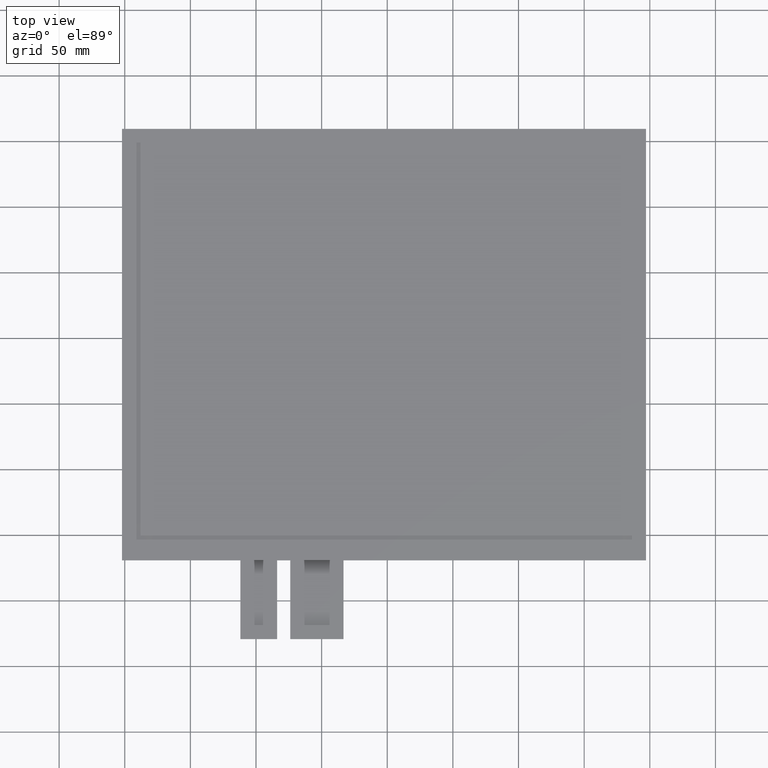
[diagram: clean part render]
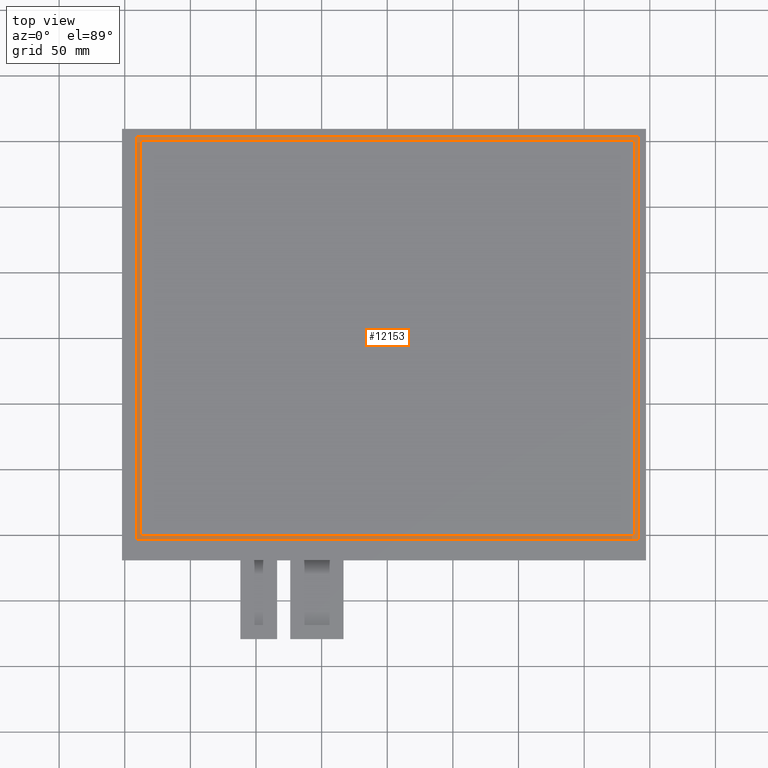
[diagram: same view with one face highlighted and labeled with its STEP entity id]
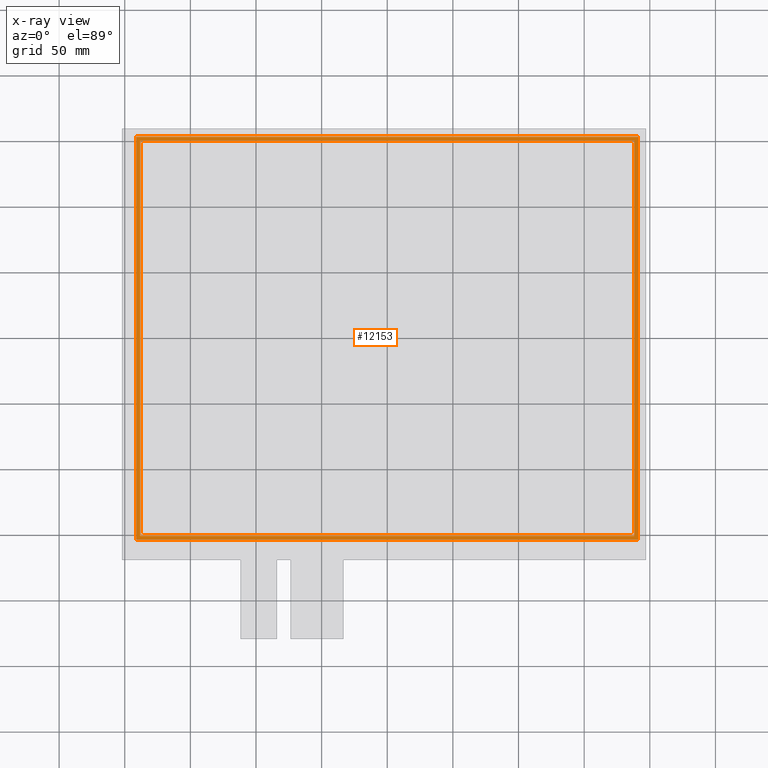
[diagram: x-ray of the same camera — body ghosted, the highlighted face saturated]
A machine part, top view. The second image highlights one B-rep face of the part: STEP entity #12153.
The next image is the same camera in x-ray: the body ghosted, the highlighted face saturated — about 0% of this face is hidden behind the body in this view.
In plain terms, the highlighted planar face has unit normal (0, 0, -1).
Its self-contained STEP definition (entity closure, byte-faithful):
#125=FACE_BOUND('',#1852,.T.);
#695=PLANE('',#12759);
#1273=FACE_OUTER_BOUND('',#1851,.T.);
#1851=EDGE_LOOP('',(#11531,#11532,#11533,#11534));
#1852=EDGE_LOOP('',(#11535,#11536,#11537,#11538));
#3537=LINE('',#19019,#5245);
#3541=LINE('',#19026,#5249);
#3544=LINE('',#19032,#5252);
#3546=LINE('',#19035,#5254);
#3549=LINE('',#19043,#5257);
#3553=LINE('',#19050,#5261);
#3556=LINE('',#19056,#5264);
#3558=LINE('',#19059,#5266);
#5245=VECTOR('',#15585,10.);
#5249=VECTOR('',#15591,10.);
#5252=VECTOR('',#15596,10.);
#5254=VECTOR('',#15600,10.);
#5257=VECTOR('',#15605,10.);
#5261=VECTOR('',#15611,10.);
#5264=VECTOR('',#15616,10.);
#5266=VECTOR('',#15620,10.);
#6409=VERTEX_POINT('',#19016);
#6410=VERTEX_POINT('',#19018);
#6412=VERTEX_POINT('',#19024);
#6414=VERTEX_POINT('',#19030);
#6417=VERTEX_POINT('',#19040);
#6418=VERTEX_POINT('',#19042);
#6420=VERTEX_POINT('',#19048);
#6422=VERTEX_POINT('',#19054);
#8113=EDGE_CURVE('',#6409,#6410,#3537,.T.);
#8117=EDGE_CURVE('',#6412,#6409,#3541,.T.);
#8120=EDGE_CURVE('',#6414,#6412,#3544,.T.);
#8122=EDGE_CURVE('',#6410,#6414,#3546,.T.);
#8125=EDGE_CURVE('',#6417,#6418,#3549,.T.);
#8129=EDGE_CURVE('',#6420,#6417,#3553,.T.);
#8132=EDGE_CURVE('',#6422,#6420,#3556,.T.);
#8134=EDGE_CURVE('',#6418,#6422,#3558,.T.);
#11531=ORIENTED_EDGE('',*,*,#8134,.F.);
#11532=ORIENTED_EDGE('',*,*,#8125,.F.);
#11533=ORIENTED_EDGE('',*,*,#8129,.F.);
#11534=ORIENTED_EDGE('',*,*,#8132,.F.);
#11535=ORIENTED_EDGE('',*,*,#8122,.F.);
#11536=ORIENTED_EDGE('',*,*,#8113,.F.);
#11537=ORIENTED_EDGE('',*,*,#8117,.F.);
#11538=ORIENTED_EDGE('',*,*,#8120,.F.);
#12153=ADVANCED_FACE('',(#1273,#125),#695,.F.);
#12759=AXIS2_PLACEMENT_3D('',#19060,#15621,#15622);
#15585=DIRECTION('',(1.,0.,0.));
#15591=DIRECTION('',(0.,-1.,0.));
#15596=DIRECTION('',(-1.,0.,0.));
#15600=DIRECTION('',(0.,1.,0.));
#15605=DIRECTION('',(-2.3144714519873E-16,1.,0.));
#15611=DIRECTION('',(-1.,-9.29543087074961E-17,0.));
#15616=DIRECTION('',(1.15723572599365E-16,-1.,0.));
#15620=DIRECTION('',(1.,0.,0.));
#15621=DIRECTION('center_axis',(0.,0.,-1.));
#15622=DIRECTION('ref_axis',(-1.,0.,0.));
#19016=CARTESIAN_POINT('',(-188.2,-150.55,-0.1));
#19018=CARTESIAN_POINT('',(188.2,-150.55,-0.1));
#19019=CARTESIAN_POINT('',(188.2,-150.55,-0.1));
#19024=CARTESIAN_POINT('',(-188.2,150.55,-0.1));
#19026=CARTESIAN_POINT('',(-188.2,-150.55,-0.1));
#19030=CARTESIAN_POINT('',(188.2,150.55,-0.1));
#19032=CARTESIAN_POINT('',(-188.2,150.55,-0.1));
#19035=CARTESIAN_POINT('',(188.2,150.55,-0.1));
#19040=CARTESIAN_POINT('',(-191.1,-153.55,-0.1));
#19042=CARTESIAN_POINT('',(-191.1,153.45,-0.1));
#19043=CARTESIAN_POINT('',(-191.1,153.45,-0.1));
#19048=CARTESIAN_POINT('',(191.1,-153.55,-0.1));
#19050=CARTESIAN_POINT('',(-191.1,-153.55,-0.1));
#19054=CARTESIAN_POINT('',(191.1,153.45,-0.1));
#19056=CARTESIAN_POINT('',(191.1,-153.55,-0.1));
#19059=CARTESIAN_POINT('',(191.1,153.45,-0.1));
#19060=CARTESIAN_POINT('Origin',(0.,-0.0499999999999545,-0.1));